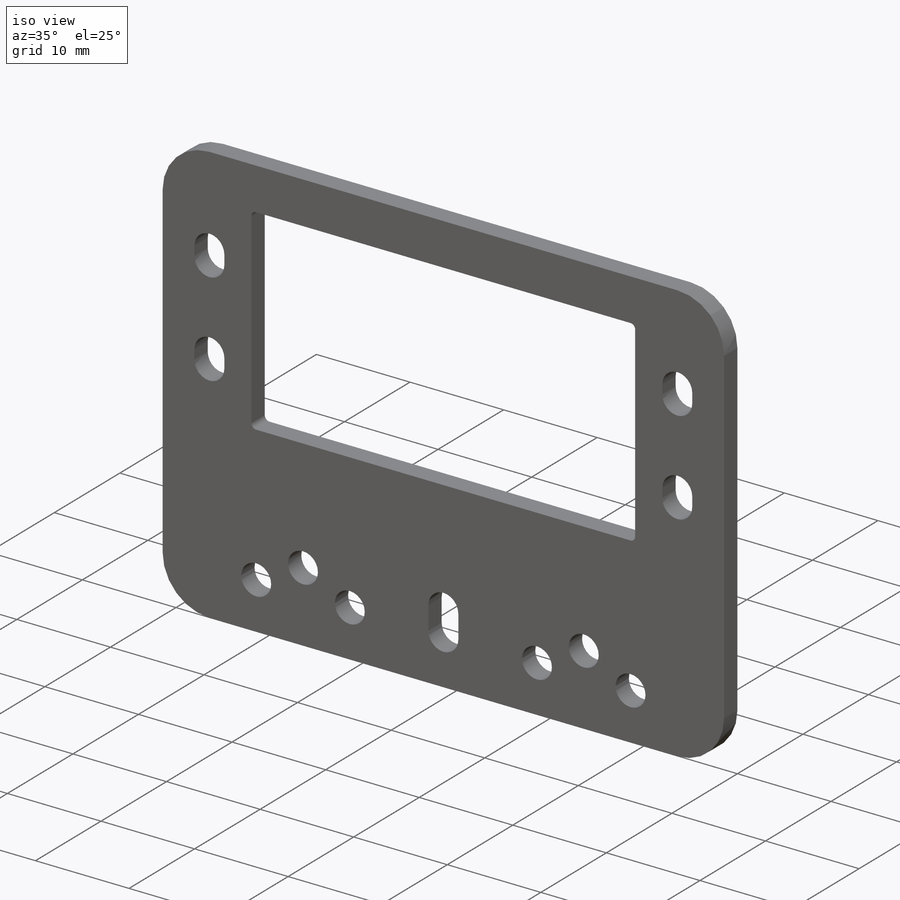
[diagram: iso view]
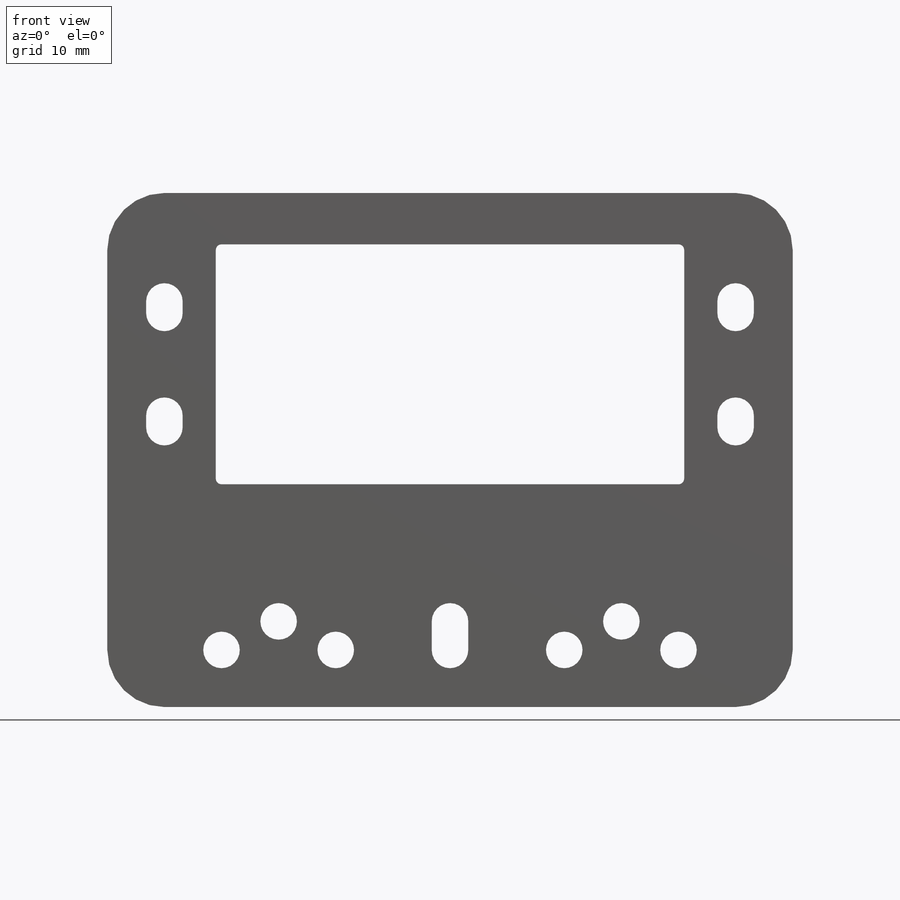
[diagram: front view]
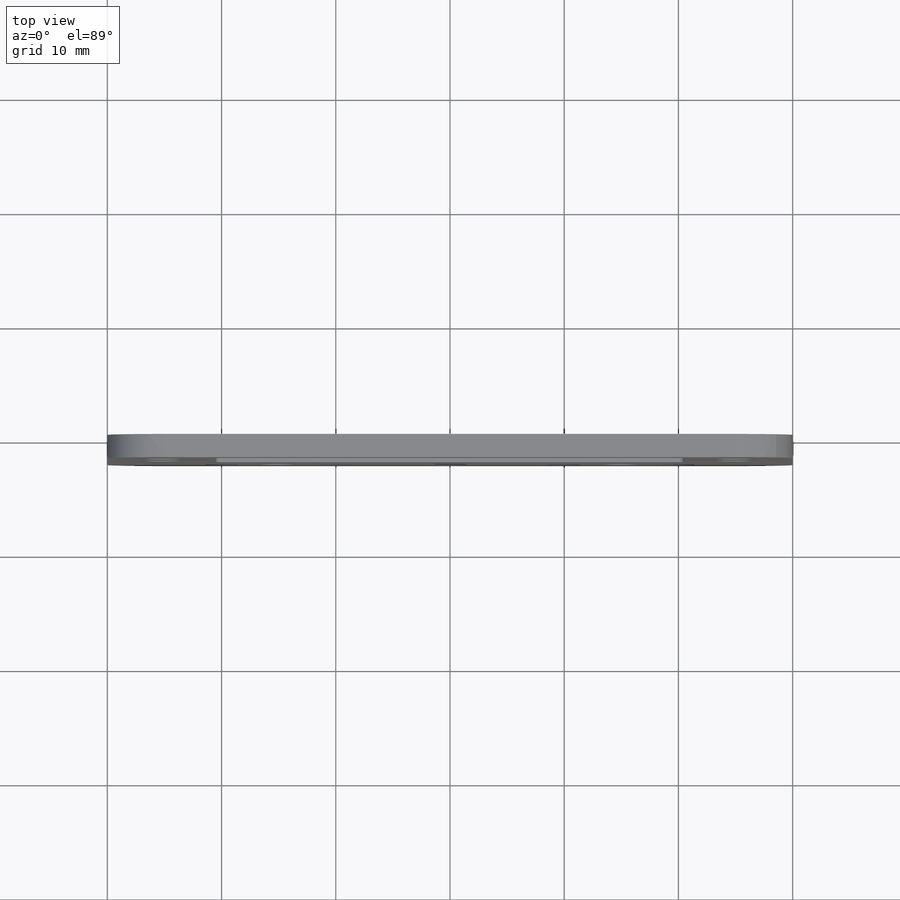
[diagram: top view]
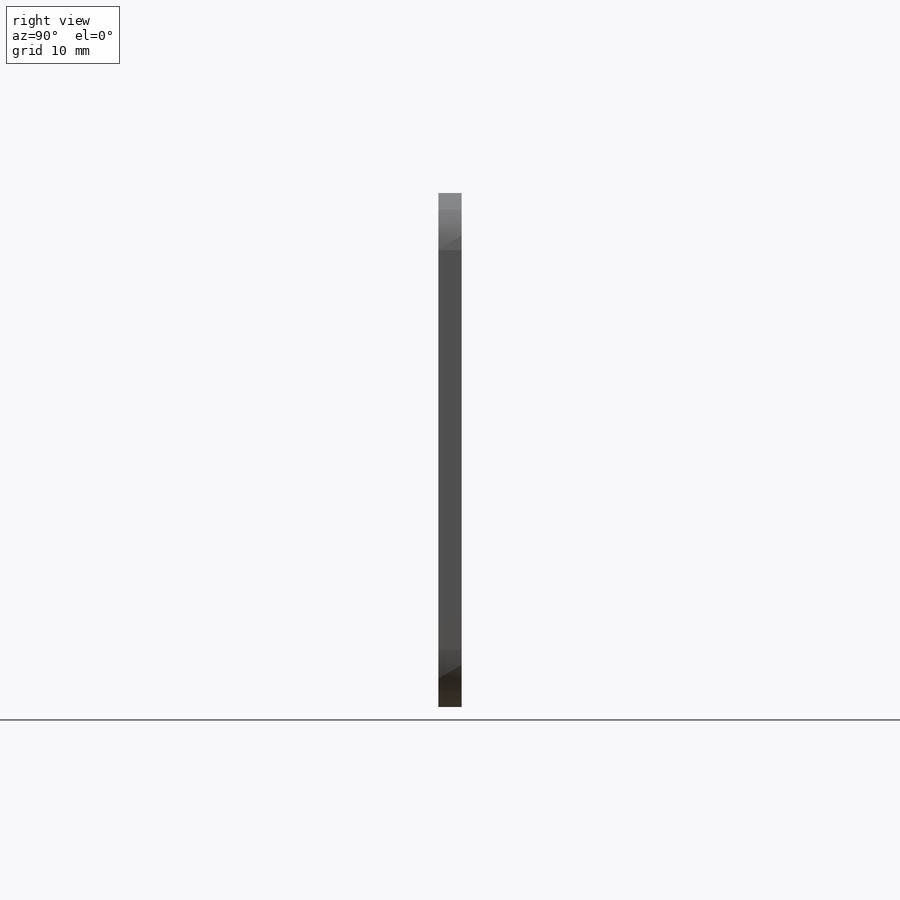
[diagram: right view]
SOLIDWORKS PART (.sldprt)
format: sldprt  version: not decoded by parser v0  size: 286,720 bytes
history: native  units: mm
features: sketch x4, cut_extrude x3, fillet x2, material x1, extrude x1 (+11 scaffold rows collapsed)
feature tree (22):
  scaffold x11  (default folders/planes/origin — collapsed)
  material  "Material <not specified>"
  sketch  "Sketch1"  dims[D1=60.0mm D2=45.0mm]
  extrude  "Boss-Extrude1"  Depth=2.032mm
  fillet  "Fillet1"  Radius=5mm
  sketch  "Sketch2"  dims[D1=15.0mm D2=21.0mm D3=41.0mm]
  cut_extrude  "Cut-Extrude1"  [1 undecoded]
  fillet  "Fillet2"  Radius=0.5mm
  sketch  "Sketch3"  dims[D1=10.0mm D2=50.0mm D3=3.2mm D4=1.0mm]
  cut_extrude  "Cut-Extrude2"  [1 undecoded]
  sketch  "Sketch4"  dims[D1=3.2mm D2=7.5mm D3=15.0mm D4=15.0mm D5=15.0mm D6=7.5mm D7=5.0mm D8=10.0mm D9=10.0mm D10=10.0mm]
  cut_extrude  "Cut-Extrude3"  [1 undecoded]
decode coverage: 7 of 10 modeling features carry decoded parameters
note: 3 parameter values undecoded
summary: no parameter record found for 3 features
note: suppression state not decoded; provenance and decode notes live in map.json
